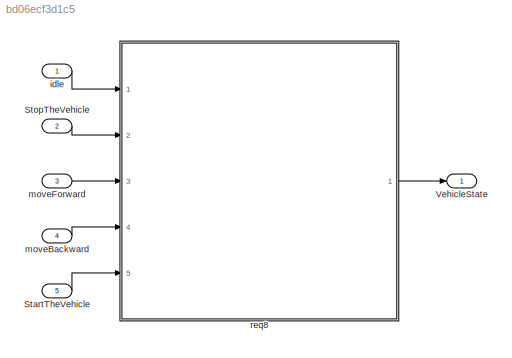
MODEL slx_bd06ecf3d1c5
KIND model
CONFIG AbsTol = auto
CONFIG EnableMultiTasking = off
CONFIG FixedStep = auto
CONFIG MaxStep = auto
CONFIG MinStep = auto
CONFIG RelTol = 1e-3
CONFIG SampleTimeConstraint = Unconstrained
CONFIG Solver = FixedStepAuto
CONFIG SolverName = FixedStepAuto
CONFIG StartTime = 0.0
CONFIG StopTime = 100
BLOCK [Inport] StartTheVehicle
  IconDisplay = Port number
  Port = 5
BLOCK [Inport] StopTheVehicle
  IconDisplay = Port number
  Port = 2
BLOCK [Outport] VehicleState
  IconDisplay = Port number
BLOCK [Inport] idle
  IconDisplay = Port number
BLOCK [Inport] moveBackward
  IconDisplay = Port number
  Port = 4
BLOCK [Inport] moveForward
  IconDisplay = Port number
  Port = 3
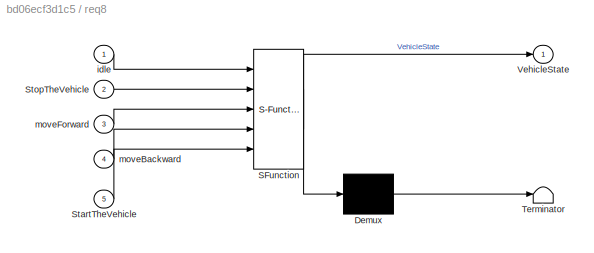
BLOCK [SubSystem] req8
  BlockKeywords = __PRM__SERIALIZED__DATA__:Stateflow Chart,Stateflow Diagram
  ErrorFcn = Stateflow.Translate.translate
  PermitHierarchicalResolution = ExplicitOnly
  Ports = [5, 1]
  RequestExecContextInheritance = off
  SFBlockType = Chart
  TreatAsAtomicUnit = on
BLOCK [Demux] req8/ Demux 
  Outputs = 1
  Ports = [1, 1]
BLOCK [S-Function] req8/ SFunction 
  EnableBusSupport = on
  FunctionName = sf_sfun
  PortCounts = [5 2]
  Ports = [5, 2]
  SFcnIsStateOwnerBlock = off
  SFunctionDeploymentMode = off
  Tag = Stateflow S-Function req8 3
BLOCK [Terminator] req8/ Terminator 
BLOCK [Inport] req8/StartTheVehicle
  IconDisplay = Port number
  Port = 5
BLOCK [Inport] req8/StopTheVehicle
  IconDisplay = Port number
  Port = 2
BLOCK [Outport] req8/VehicleState
  IconDisplay = Port number
BLOCK [Inport] req8/idle
  IconDisplay = Port number
BLOCK [Inport] req8/moveBackward
  IconDisplay = Port number
  Port = 4
BLOCK [Inport] req8/moveForward
  IconDisplay = Port number
  Port = 3
LINE StartTheVehicle:1 -> req8:5
LINE StopTheVehicle:1 -> req8:2
LINE idle:1 -> req8:1
LINE moveBackward:1 -> req8:4
LINE moveForward:1 -> req8:3
LINE req8:1 -> VehicleState:1
CHART req8 states=5 transitions=10
  STATE_LABEL 'OffState\nVehicleState=0;'
  STATE_LABEL 'VehicelStart'
  STATE_LABEL 'Idle\nVehicleState=1;'
  STATE_LABEL 'MoveForwad\nVehicleState=2;'
  STATE_LABEL 'MoveBackward\nVehicleState=3;'
  STATE_LABEL '[idle]'
  STATE_LABEL '[moveForward]'
  STATE_LABEL '[idle]'
  STATE_LABEL '[moveBackward]'
  STATE_LABEL '[moveForward]'
  STATE_LABEL '[moveBackward]'
  STATE_LABEL 'Idle\nVehicleState=1;'
  STATE_LABEL 'MoveForwad\nVehicleState=2;'
  STATE_LABEL 'MoveBackward\nVehicleState=3;'
